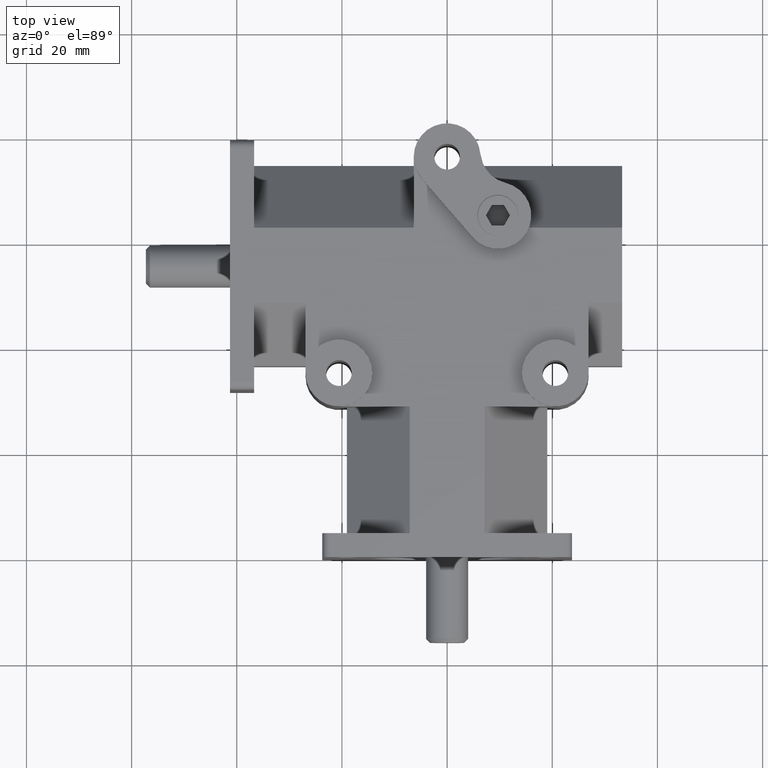
[diagram: clean part render]
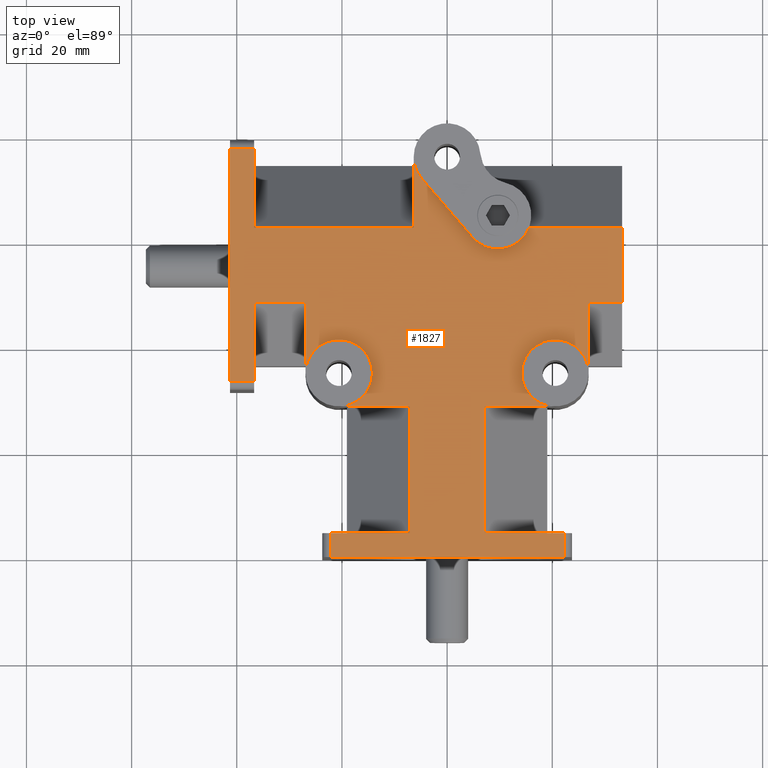
[diagram: same view with one face highlighted and labeled with its STEP entity id]
A machine part, top view. The second image highlights one B-rep face of the part: STEP entity #1827.
In plain terms, the highlighted planar face has unit normal (0, 0, 1).
Its self-contained STEP definition (entity closure, byte-faithful):
#66=PLANE('',#2002);
#155=FACE_OUTER_BOUND('',#277,.T.);
#277=EDGE_LOOP('',(#1400,#1401,#1402,#1403,#1404,#1405,#1406,#1407,#1408,
#1409,#1410,#1411,#1412,#1413,#1414,#1415,#1416,#1417,#1418,#1419,#1420,
#1421,#1422,#1423,#1424,#1425,#1426,#1427));
#419=CIRCLE('',#2003,6.35);
#420=CIRCLE('',#2004,6.35);
#421=CIRCLE('',#2005,6.35);
#422=CIRCLE('',#2006,6.35);
#423=CIRCLE('',#2007,6.35);
#468=LINE('',#2779,#641);
#473=LINE('',#2803,#646);
#476=LINE('',#2815,#649);
#482=LINE('',#2842,#655);
#483=LINE('',#2844,#656);
#505=LINE('',#2896,#678);
#508=LINE('',#2909,#681);
#509=LINE('',#2911,#682);
#510=LINE('',#2913,#683);
#511=LINE('',#2919,#684);
#512=LINE('',#2921,#685);
#513=LINE('',#2923,#686);
#514=LINE('',#2925,#687);
#515=LINE('',#2929,#688);
#516=LINE('',#2932,#689);
#517=LINE('',#2934,#690);
#518=LINE('',#2935,#691);
#519=LINE('',#2937,#692);
#520=LINE('',#2939,#693);
#521=LINE('',#2941,#694);
#522=LINE('',#2945,#695);
#523=LINE('',#2947,#696);
#524=LINE('',#2948,#697);
#641=VECTOR('',#2239,1.);
#646=VECTOR('',#2260,1.);
#649=VECTOR('',#2271,1.);
#655=VECTOR('',#2295,1.);
#656=VECTOR('',#2298,1.);
#678=VECTOR('',#2338,1.);
#681=VECTOR('',#2351,1.);
#682=VECTOR('',#2352,1.);
#683=VECTOR('',#2353,1.);
#684=VECTOR('',#2358,1.);
#685=VECTOR('',#2359,1.);
#686=VECTOR('',#2360,1.);
#687=VECTOR('',#2361,1.);
#688=VECTOR('',#2364,1.);
#689=VECTOR('',#2367,1.);
#690=VECTOR('',#2368,1.);
#691=VECTOR('',#2369,1.);
#692=VECTOR('',#2370,1.);
#693=VECTOR('',#2371,1.);
#694=VECTOR('',#2372,1.);
#695=VECTOR('',#2375,1.);
#696=VECTOR('',#2376,1.);
#697=VECTOR('',#2377,1.);
#796=VERTEX_POINT('',#2666);
#829=VERTEX_POINT('',#2772);
#832=VERTEX_POINT('',#2777);
#842=VERTEX_POINT('',#2800);
#843=VERTEX_POINT('',#2802);
#845=VERTEX_POINT('',#2808);
#848=VERTEX_POINT('',#2813);
#857=VERTEX_POINT('',#2835);
#860=VERTEX_POINT('',#2840);
#886=VERTEX_POINT('',#2908);
#887=VERTEX_POINT('',#2910);
#888=VERTEX_POINT('',#2912);
#889=VERTEX_POINT('',#2914);
#890=VERTEX_POINT('',#2916);
#891=VERTEX_POINT('',#2918);
#892=VERTEX_POINT('',#2920);
#893=VERTEX_POINT('',#2922);
#894=VERTEX_POINT('',#2924);
#895=VERTEX_POINT('',#2926);
#896=VERTEX_POINT('',#2928);
#897=VERTEX_POINT('',#2931);
#898=VERTEX_POINT('',#2933);
#899=VERTEX_POINT('',#2936);
#900=VERTEX_POINT('',#2938);
#901=VERTEX_POINT('',#2940);
#902=VERTEX_POINT('',#2942);
#903=VERTEX_POINT('',#2944);
#904=VERTEX_POINT('',#2946);
#1019=EDGE_CURVE('',#832,#829,#468,.T.);
#1029=EDGE_CURVE('',#842,#843,#473,.T.);
#1035=EDGE_CURVE('',#848,#845,#476,.T.);
#1047=EDGE_CURVE('',#860,#857,#482,.T.);
#1048=EDGE_CURVE('',#829,#842,#483,.T.);
#1077=EDGE_CURVE('',#845,#860,#505,.T.);
#1084=EDGE_CURVE('',#886,#832,#508,.T.);
#1085=EDGE_CURVE('',#887,#886,#509,.T.);
#1086=EDGE_CURVE('',#888,#887,#510,.T.);
#1087=EDGE_CURVE('',#888,#889,#419,.T.);
#1088=EDGE_CURVE('',#889,#890,#420,.T.);
#1089=EDGE_CURVE('',#891,#890,#511,.T.);
#1090=EDGE_CURVE('',#892,#891,#512,.T.);
#1091=EDGE_CURVE('',#892,#893,#513,.T.);
#1092=EDGE_CURVE('',#894,#893,#514,.T.);
#1093=EDGE_CURVE('',#894,#895,#421,.T.);
#1094=EDGE_CURVE('',#895,#896,#515,.T.);
#1095=EDGE_CURVE('',#896,#796,#422,.T.);
#1096=EDGE_CURVE('',#897,#796,#516,.T.);
#1097=EDGE_CURVE('',#898,#897,#517,.T.);
#1098=EDGE_CURVE('',#857,#898,#518,.T.);
#1099=EDGE_CURVE('',#899,#848,#519,.T.);
#1100=EDGE_CURVE('',#900,#899,#520,.T.);
#1101=EDGE_CURVE('',#901,#900,#521,.T.);
#1102=EDGE_CURVE('',#901,#902,#423,.T.);
#1103=EDGE_CURVE('',#903,#902,#522,.T.);
#1104=EDGE_CURVE('',#904,#903,#523,.T.);
#1105=EDGE_CURVE('',#843,#904,#524,.T.);
#1400=ORIENTED_EDGE('',*,*,#1019,.F.);
#1401=ORIENTED_EDGE('',*,*,#1084,.F.);
#1402=ORIENTED_EDGE('',*,*,#1085,.F.);
#1403=ORIENTED_EDGE('',*,*,#1086,.F.);
#1404=ORIENTED_EDGE('',*,*,#1087,.T.);
#1405=ORIENTED_EDGE('',*,*,#1088,.T.);
#1406=ORIENTED_EDGE('',*,*,#1089,.F.);
#1407=ORIENTED_EDGE('',*,*,#1090,.F.);
#1408=ORIENTED_EDGE('',*,*,#1091,.T.);
#1409=ORIENTED_EDGE('',*,*,#1092,.F.);
#1410=ORIENTED_EDGE('',*,*,#1093,.T.);
#1411=ORIENTED_EDGE('',*,*,#1094,.T.);
#1412=ORIENTED_EDGE('',*,*,#1095,.T.);
#1413=ORIENTED_EDGE('',*,*,#1096,.F.);
#1414=ORIENTED_EDGE('',*,*,#1097,.F.);
#1415=ORIENTED_EDGE('',*,*,#1098,.F.);
#1416=ORIENTED_EDGE('',*,*,#1047,.F.);
#1417=ORIENTED_EDGE('',*,*,#1077,.F.);
#1418=ORIENTED_EDGE('',*,*,#1035,.F.);
#1419=ORIENTED_EDGE('',*,*,#1099,.F.);
#1420=ORIENTED_EDGE('',*,*,#1100,.F.);
#1421=ORIENTED_EDGE('',*,*,#1101,.F.);
#1422=ORIENTED_EDGE('',*,*,#1102,.T.);
#1423=ORIENTED_EDGE('',*,*,#1103,.F.);
#1424=ORIENTED_EDGE('',*,*,#1104,.F.);
#1425=ORIENTED_EDGE('',*,*,#1105,.F.);
#1426=ORIENTED_EDGE('',*,*,#1029,.F.);
#1427=ORIENTED_EDGE('',*,*,#1048,.F.);
#1827=ADVANCED_FACE('',(#155),#66,.T.);
#2002=AXIS2_PLACEMENT_3D('',#2907,#2349,#2350);
#2003=AXIS2_PLACEMENT_3D('',#2915,#2354,#2355);
#2004=AXIS2_PLACEMENT_3D('',#2917,#2356,#2357);
#2005=AXIS2_PLACEMENT_3D('',#2927,#2362,#2363);
#2006=AXIS2_PLACEMENT_3D('',#2930,#2365,#2366);
#2007=AXIS2_PLACEMENT_3D('',#2943,#2373,#2374);
#2239=DIRECTION('',(0.,-1.,0.));
#2260=DIRECTION('',(0.,1.,0.));
#2271=DIRECTION('',(-1.,0.,0.));
#2295=DIRECTION('',(1.,0.,0.));
#2298=DIRECTION('',(-1.,0.,0.));
#2338=DIRECTION('',(0.,1.,0.));
#2349=DIRECTION('center_axis',(0.,0.,1.));
#2350=DIRECTION('ref_axis',(-1.,0.,0.));
#2351=DIRECTION('',(1.,0.,0.));
#2352=DIRECTION('',(0.,-1.,0.));
#2353=DIRECTION('',(-1.,0.,0.));
#2354=DIRECTION('center_axis',(0.,0.,-1.));
#2355=DIRECTION('ref_axis',(1.,0.,0.));
#2356=DIRECTION('center_axis',(0.,0.,-1.));
#2357=DIRECTION('ref_axis',(1.,0.,0.));
#2358=DIRECTION('',(0.,-1.,0.));
#2359=DIRECTION('',(-1.,0.,0.));
#2360=DIRECTION('',(0.,1.,0.));
#2361=DIRECTION('',(1.,0.,0.));
#2362=DIRECTION('center_axis',(0.,0.,-1.));
#2363=DIRECTION('ref_axis',(1.,0.,0.));
#2364=DIRECTION('',(-0.653619870346092,0.75682300776916,0.));
#2365=DIRECTION('center_axis',(0.,0.,-1.));
#2366=DIRECTION('ref_axis',(1.,0.,0.));
#2367=DIRECTION('',(0.,1.,0.));
#2368=DIRECTION('',(1.,0.,0.));
#2369=DIRECTION('',(0.,-1.,0.));
#2370=DIRECTION('',(0.,-1.,0.));
#2371=DIRECTION('',(-1.,0.,0.));
#2372=DIRECTION('',(0.,1.,0.));
#2373=DIRECTION('center_axis',(0.,0.,-1.));
#2374=DIRECTION('ref_axis',(1.,0.,0.));
#2375=DIRECTION('',(-1.,0.,0.));
#2376=DIRECTION('',(0.,1.,0.));
#2377=DIRECTION('',(1.,0.,0.));
#2666=CARTESIAN_POINT('',(-6.35,76.1365,17.526));
#2772=CARTESIAN_POINT('',(22.225,0.,17.526));
#2777=CARTESIAN_POINT('',(22.225,4.572,17.526));
#2779=CARTESIAN_POINT('',(22.225,23.6376233160517,17.526));
#2800=CARTESIAN_POINT('',(-22.225,0.,17.526));
#2802=CARTESIAN_POINT('',(-22.225,4.572,17.526));
#2803=CARTESIAN_POINT('',(-22.225,21.3516233160517,17.526));
#2808=CARTESIAN_POINT('',(-41.275,33.3375,17.526));
#2813=CARTESIAN_POINT('',(-36.703,33.3375,17.526));
#2815=CARTESIAN_POINT('',(-18.3515,33.3375,17.526));
#2835=CARTESIAN_POINT('',(-36.703,77.7875,17.526));
#2840=CARTESIAN_POINT('',(-41.275,77.7875,17.526));
#2842=CARTESIAN_POINT('',(-20.6375,77.7875,17.526));
#2844=CARTESIAN_POINT('',(23.749,0.,17.526));
#2896=CARTESIAN_POINT('',(-41.275,31.8135,17.526));
#2907=CARTESIAN_POINT('Origin',(-3.41480316246034E-16,42.7032466321034,
17.526));
#2908=CARTESIAN_POINT('',(7.112,4.572,17.526));
#2909=CARTESIAN_POINT('',(23.749,4.572,17.526));
#2910=CARTESIAN_POINT('',(7.112,28.6385,17.526));
#2911=CARTESIAN_POINT('',(7.112,35.5756233160517,17.526));
#2912=CARTESIAN_POINT('',(20.574,28.6385,17.526));
#2913=CARTESIAN_POINT('',(10.287,28.6385,17.526));
#2914=CARTESIAN_POINT('',(14.224,34.9885,17.526));
#2915=CARTESIAN_POINT('Origin',(20.574,34.9885,17.526));
#2916=CARTESIAN_POINT('',(26.924,34.9885,17.526));
#2917=CARTESIAN_POINT('Origin',(20.574,34.9885,17.526));
#2918=CARTESIAN_POINT('',(26.924,48.4505,17.526));
#2919=CARTESIAN_POINT('',(26.924,34.9885,17.526));
#2920=CARTESIAN_POINT('',(33.274,48.4505,17.526));
#2921=CARTESIAN_POINT('',(18.3515,48.4505,17.526));
#2922=CARTESIAN_POINT('',(33.274,62.6745,17.526));
#2923=CARTESIAN_POINT('',(33.274,10.9604956985517,17.526));
#2924=CARTESIAN_POINT('',(15.5762471251628,62.6745,17.526));
#2925=CARTESIAN_POINT('',(3.175,62.6745,17.526));
#2926=CARTESIAN_POINT('',(4.84617390066584,60.8100138233023,17.526));
#2927=CARTESIAN_POINT('Origin',(9.652,64.9605,17.526));
#2928=CARTESIAN_POINT('',(-4.80582609933417,71.9860138233023,17.526));
#2929=CARTESIAN_POINT('',(8.24234603544737,56.877603983029,17.526));
#2930=CARTESIAN_POINT('Origin',(0.,76.1365,17.526));
#2931=CARTESIAN_POINT('',(-6.35,62.6745,17.526));
#2932=CARTESIAN_POINT('',(-6.35,74.6125,17.526));
#2933=CARTESIAN_POINT('',(-36.703,62.6745,17.526));
#2934=CARTESIAN_POINT('',(-18.3515,62.6745,17.526));
#2935=CARTESIAN_POINT('',(-36.703,61.1026233160517,17.526));
#2936=CARTESIAN_POINT('',(-36.703,48.4505,17.526));
#2937=CARTESIAN_POINT('',(-36.703,31.8135,17.526));
#2938=CARTESIAN_POINT('',(-26.924,48.4505,17.526));
#2939=CARTESIAN_POINT('',(-13.462,48.4505,17.526));
#2940=CARTESIAN_POINT('',(-26.924,34.9885,17.526));
#2941=CARTESIAN_POINT('',(-26.924,38.9411233160517,17.526));
#2942=CARTESIAN_POINT('',(-20.574,28.6385,17.526));
#2943=CARTESIAN_POINT('Origin',(-20.574,34.9885,17.526));
#2944=CARTESIAN_POINT('',(-7.112,28.6385,17.526));
#2945=CARTESIAN_POINT('',(-19.05,28.6385,17.526));
#2946=CARTESIAN_POINT('',(-7.112,4.572,17.526));
#2947=CARTESIAN_POINT('',(-7.112,23.6376233160517,17.526));
#2948=CARTESIAN_POINT('',(-11.8745,4.572,17.526));